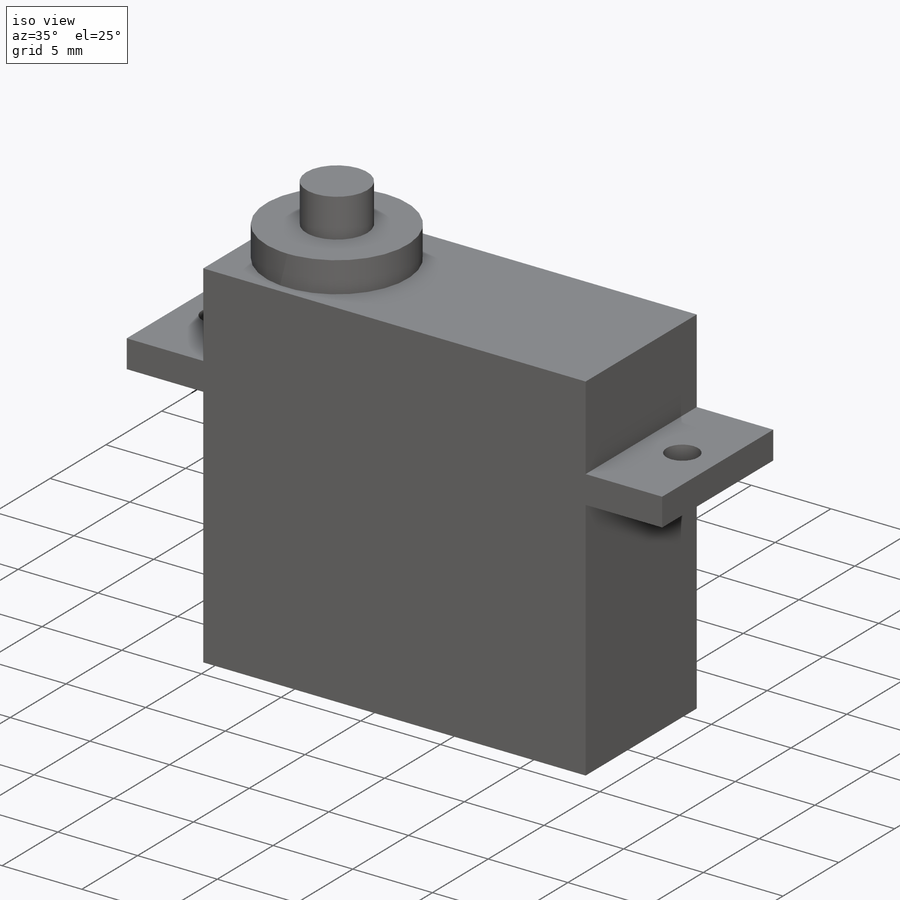
[diagram: iso view]
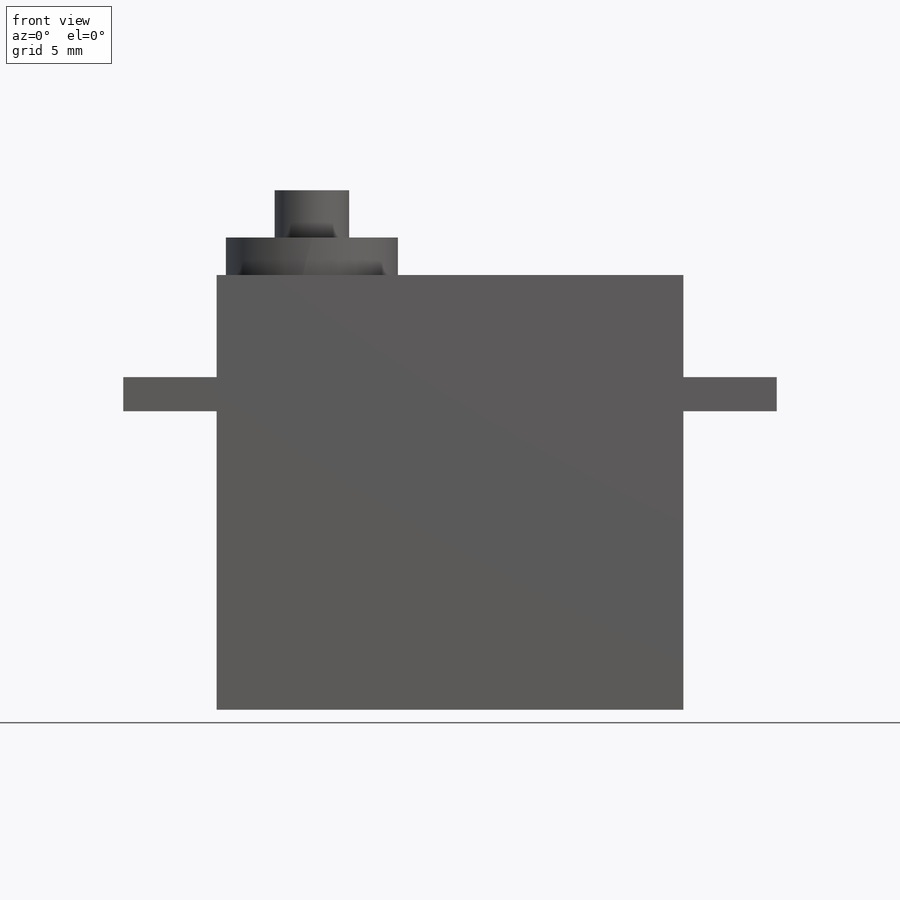
[diagram: front view]
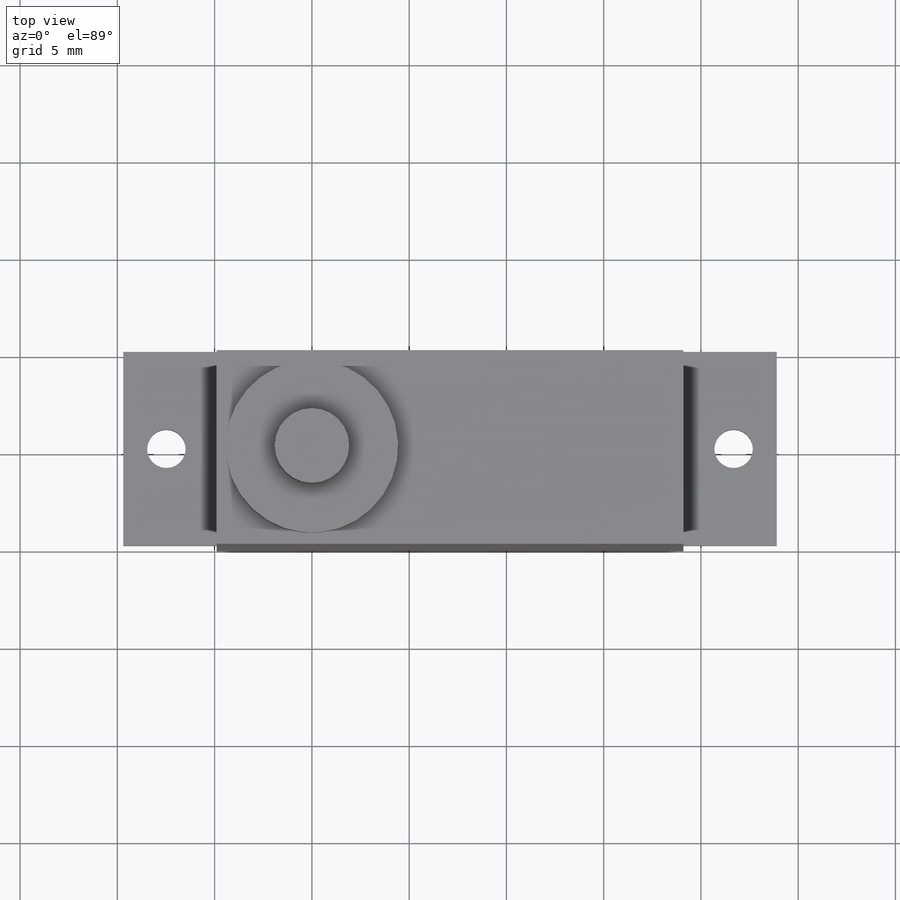
[diagram: top view]
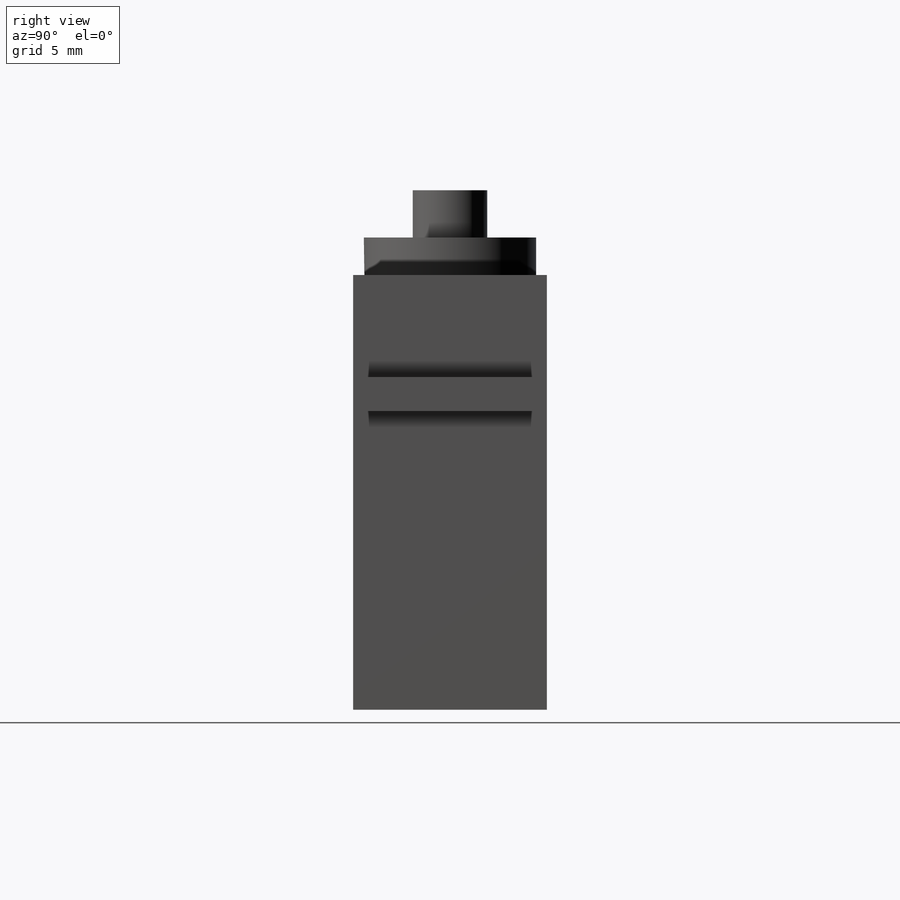
[diagram: right view]
SOLIDWORKS PART (.sldprt)
format: sldprt  version: not decoded by parser v0  size: 155,136 bytes
history: native  units: mm
features: sketch x4, extrude x3, material x1, cut_extrude x1 (+16 scaffold rows collapsed)
feature tree (25):
  scaffold x16  (default folders/planes/origin — collapsed)
  material  "Material <not specified>"
  sketch  "Sketch1"  dims[D1=24.0mm D2=33.6mm D3=7.0mm D4=15.35mm D5=4.9mm D6=1.75mm]
  extrude  "Boss-Extrude1"  Depth=9.96mm
  sketch  "Sketch2"  dims[c1.D3=1.98mm c1.D1=7.48mm c1.D2=20.9mm c2.D1=7.48mm]
  cut_extrude  "Cut-Extrude1"  [1 undecoded]
  sketch  "Sketch3"
  extrude  "Boss-Extrude2"  Depth=1.93mm
  sketch  "Sketch4"
  extrude  "Boss-Extrude3"  Depth=2.43mm
decode coverage: 5 of 8 modeling features carry decoded parameters
note: 1 parameter value undecoded
note: suppression state not decoded; provenance and decode notes live in map.json
